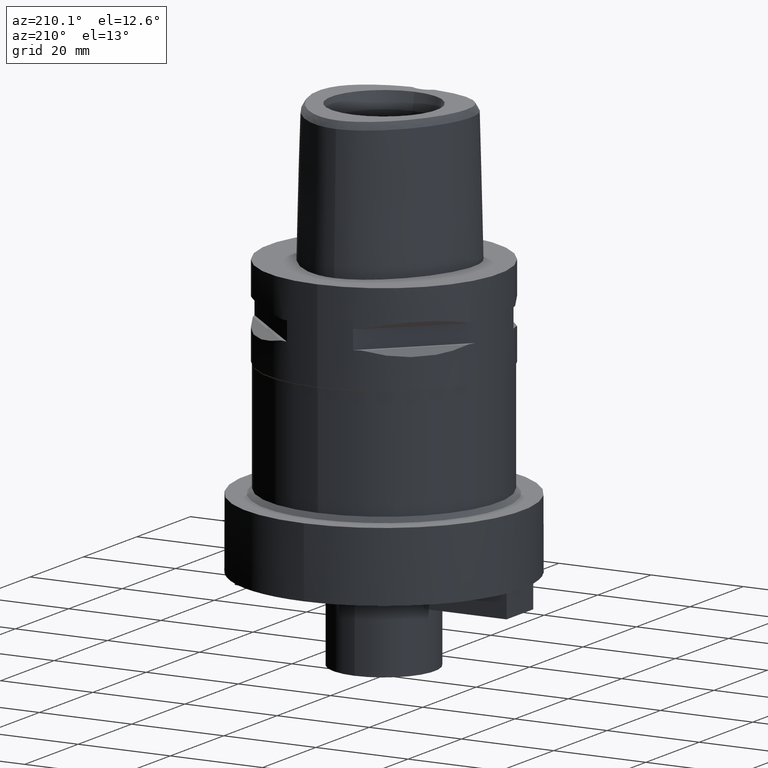
[diagram: clean part render]
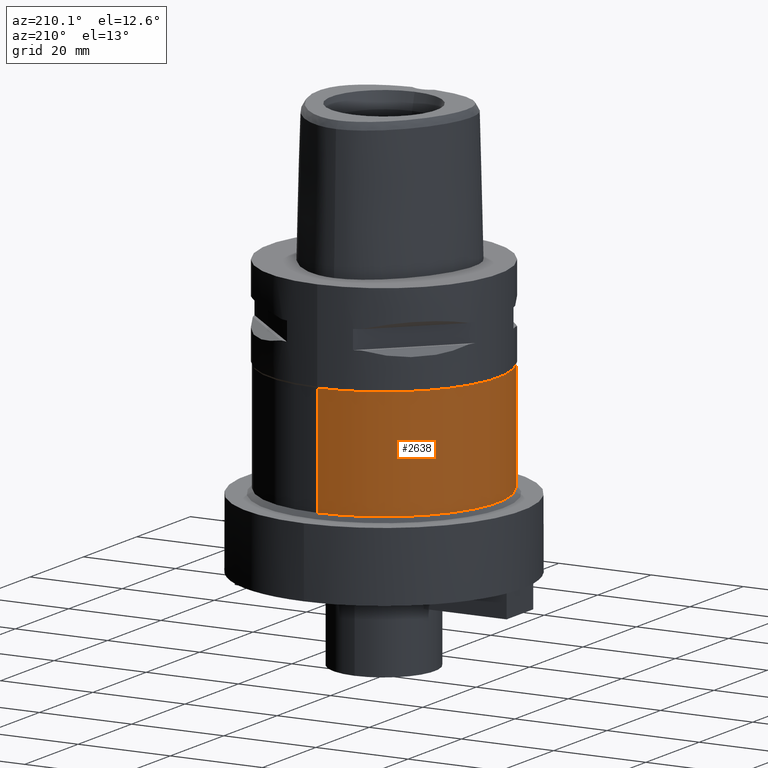
[diagram: same view with one face highlighted and labeled with its STEP entity id]
A machine part, auxiliary view. The second image highlights one B-rep face of the part: STEP entity #2638.
In plain terms, the highlighted cylindrical surface (partial cylindrical patch) has radius 24.8 mm, axis along (0, 0, -1).
Its self-contained STEP definition (entity closure, byte-faithful):
#530=CARTESIAN_POINT('',(0.E0,0.E0,-2.E1));
#531=DIRECTION('',(0.E0,0.E0,-1.E0));
#532=DIRECTION('',(0.E0,-1.E0,0.E0));
#533=AXIS2_PLACEMENT_3D('',#530,#531,#532);
#538=DIRECTION('',(0.E0,-2.782959048394E-14,-1.E0));
#539=VECTOR('',#538,2.4E1);
#540=CARTESIAN_POINT('',(0.E0,-2.48E1,-2.E1));
#541=LINE('',#540,#539);
#545=DIRECTION('',(0.E0,2.782959048394E-14,-1.E0));
#546=VECTOR('',#545,2.4E1);
#547=CARTESIAN_POINT('',(0.E0,2.48E1,-2.E1));
#548=LINE('',#547,#546);
#567=CARTESIAN_POINT('',(0.E0,0.E0,-4.4E1));
#568=DIRECTION('',(0.E0,0.E0,1.E0));
#569=DIRECTION('',(0.E0,1.E0,0.E0));
#570=AXIS2_PLACEMENT_3D('',#567,#568,#569);
#1742=CARTESIAN_POINT('',(0.E0,2.48E1,-2.E1));
#1743=VERTEX_POINT('',#1742);
#1744=CARTESIAN_POINT('',(0.E0,-2.48E1,-2.E1));
#1745=VERTEX_POINT('',#1744);
#1746=CARTESIAN_POINT('',(0.E0,2.48E1,-4.4E1));
#1747=VERTEX_POINT('',#1746);
#1748=CARTESIAN_POINT('',(0.E0,-2.48E1,-4.4E1));
#1749=VERTEX_POINT('',#1748);
#2624=CARTESIAN_POINT('',(0.E0,1.272408024314E-14,3.9E0));
#2625=DIRECTION('',(0.E0,0.E0,-1.E0));
#2626=DIRECTION('',(0.E0,-1.E0,0.E0));
#2627=AXIS2_PLACEMENT_3D('',#2624,#2625,#2626);
#2628=CYLINDRICAL_SURFACE('',#2627,2.48E1);
#2630=ORIENTED_EDGE('',*,*,#2629,.F.);
#2631=ORIENTED_EDGE('',*,*,#2619,.F.);
#2633=ORIENTED_EDGE('',*,*,#2632,.T.);
#2635=ORIENTED_EDGE('',*,*,#2634,.F.);
#2636=EDGE_LOOP('',(#2630,#2631,#2633,#2635));
#2637=FACE_OUTER_BOUND('',#2636,.F.);
#534=CIRCLE('',#533,2.48E1);
#571=CIRCLE('',#570,2.48E1);
#2619=EDGE_CURVE('',#1745,#1743,#534,.T.);
#2629=EDGE_CURVE('',#1743,#1747,#548,.T.);
#2632=EDGE_CURVE('',#1745,#1749,#541,.T.);
#2634=EDGE_CURVE('',#1747,#1749,#571,.T.);
#2638=ADVANCED_FACE('',(#2637),#2628,.T.);